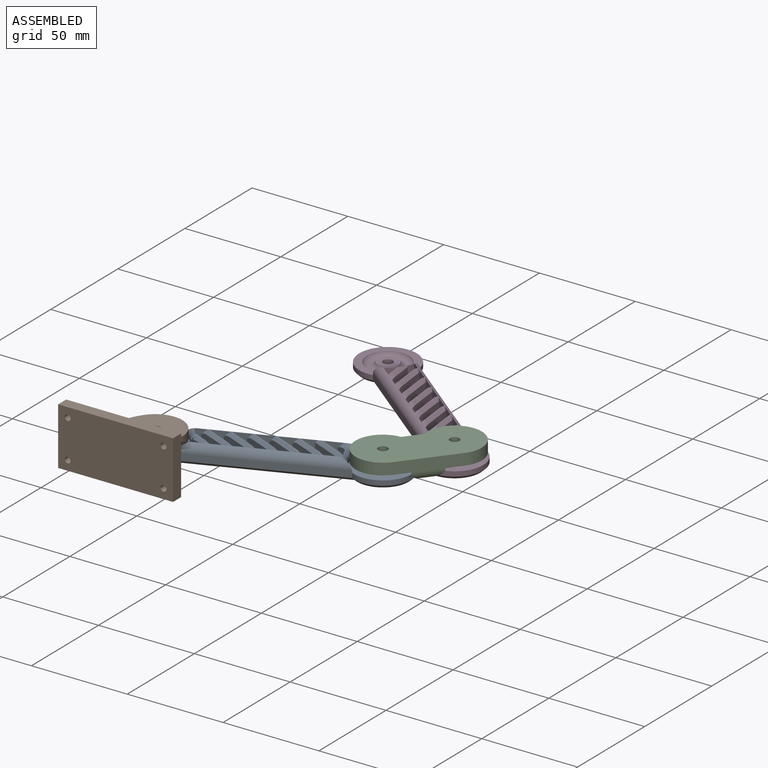
[diagram: assembled view]
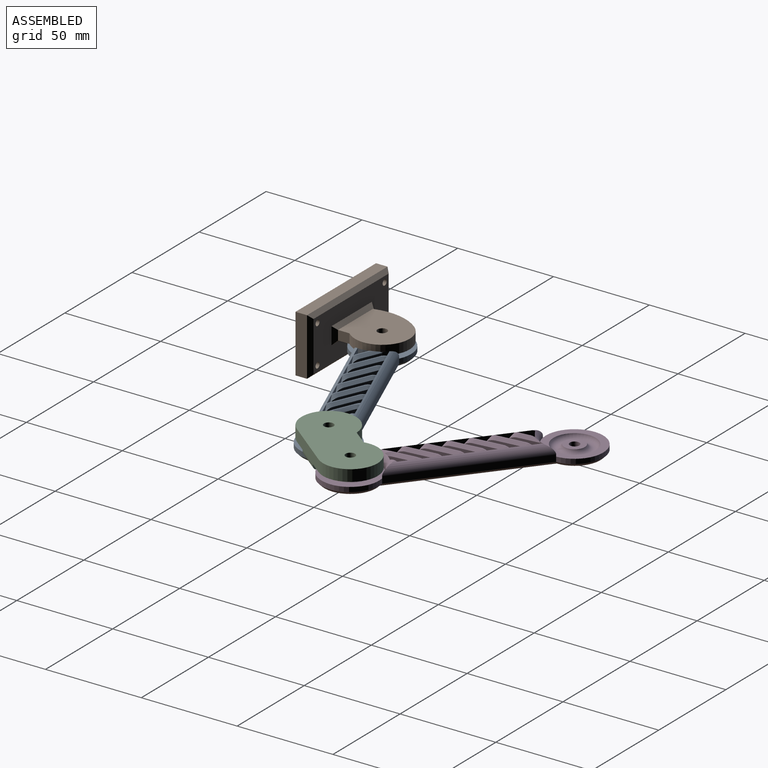
[diagram: assembled view, second angle]
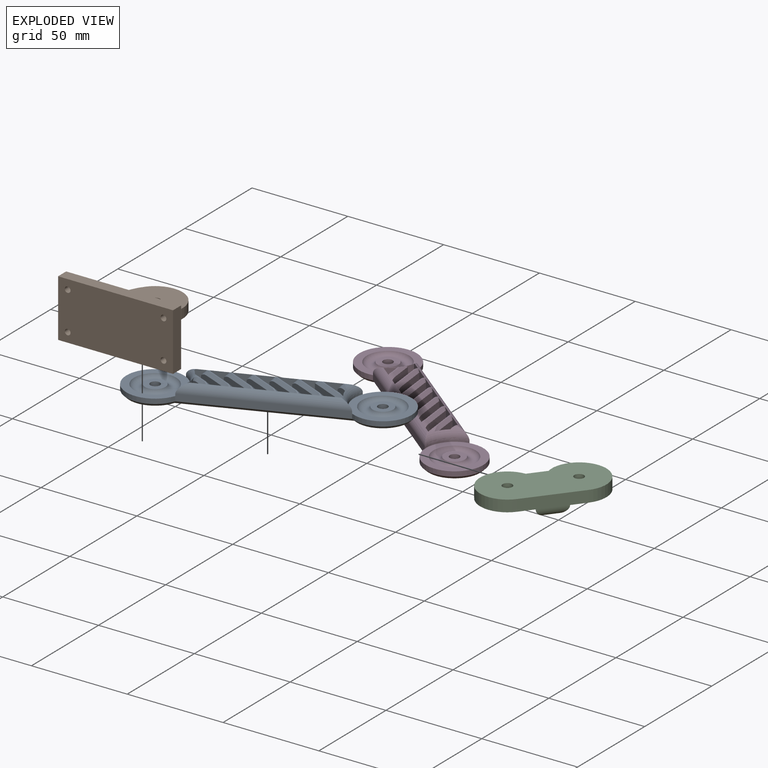
[diagram: exploded view]
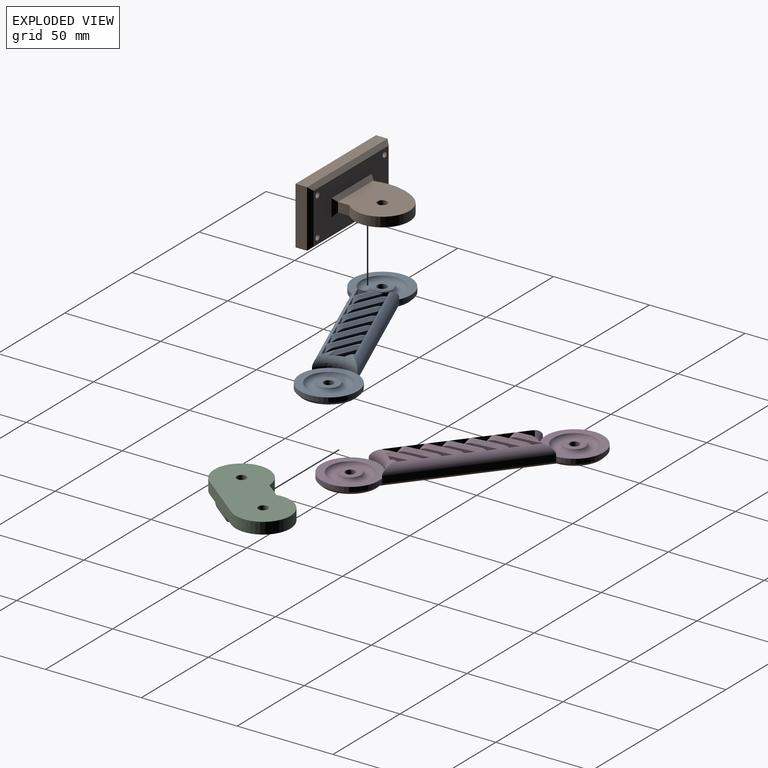
[diagram: exploded view, second angle]
ASSEMBLY  parts=4 mates=3
PART A: 117 faces, bbox 130.7x34.7x10.7 mm
  f0: plane 7.55x7.55mm, normal (0,0,1), area 5.4mm2, adj f56,f57,f63,f116
  f1: plane 10.76x10mm, normal (0,0,1), area 7.6mm2, adj f54,f57,f66,f69
  f2: plane 10.76x10mm, normal (0,0,1), area 7.6mm2, adj f54,f57,f72,f75
  f3: plane 10.76x10mm, normal (0,0,1), area 7.6mm2, adj f54,f57,f78,f81
  f4: plane 10.76x10mm, normal (0,0,1), area 7.6mm2, adj f54,f57,f92,f95
  f5: plane 10.76x10mm, normal (0,0,1), area 7.6mm2, adj f54,f57,f86,f89
  f6: plane 30x30mm, normal (0,0,1), area 326.1mm2, adj f15,f50,f53
  f7: plane 10.7x10.7mm, normal (0,0,1), area 70.3mm2, adj f51,f53
  f8: plane 30x30mm, normal (0,0,1), area 326.1mm2, adj f13,f48,f52
  f9: plane 10.7x10.7mm, normal (0,0,1), area 70.3mm2, adj f49,f52
  f10: plane 9.77x9.43mm, normal (0,-1,0), area 52.9mm2, adj f11,f45,f47,f57,f70,f103,f104,f116
  f11: plane 14x14mm, normal (-0.71,-0.71,0), area 138.6mm2, adj f10,f12,f103,f116
  f12: plane 10.52x10.26mm, normal (0,1,0), area 55.6mm2, adj f11,f45,f47,f54,f56,f68,f103,f104
  f13: cylinder r=15mm len=20mm, axis (0,0,-1), area 21.9mm2, adj f8,f14,f37,f55
  f14: plane 77.64x3.5mm, normal (0,-1,0), area 271.7mm2, adj f13,f15,f48,f50,f54,f99
  f15: cylinder r=15mm len=20mm, axis (0,0,-1), area 21.9mm2, adj f6,f14,f37,f56
  f16: plane 7.01x5.57mm, normal (-0.71,-0.71,0), area 54.4mm2, adj f17,f38,f59,f60,f61,f115
  f17: plane 9.77x9.31mm, normal (0,1,0), area 69.3mm2, adj f16,f38,f47,f54,f55,f61,f115
  f18: plane 14.04x14.04mm, normal (-0.71,-0.71,0), area 136.3mm2, adj f19,f39,f85,f86,f87,f113
  f19: plane 10.52x10.26mm, normal (0,1,0), area 55.7mm2, adj f18,f20,f47,f54,f84,f85,f113,f114
  f20: plane 11x11mm, normal (0.71,0.71,0), area 106.2mm2, adj f19,f21,f83,f84,f114
  f21: cylinder r=17mm len=9mm, axis (0,0,-1), area 31.1mm2, adj f20,f39,f47,f55,f83,f114
  f22: plane 14.04x14.04mm, normal (-0.71,-0.71,0), area 136.3mm2, adj f23,f40,f94,f95,f96,f111
  f23: plane 10.52x10.26mm, normal (0,1,0), area 55.7mm2, adj f22,f24,f47,f54,f88,f94,f111,f112
  f24: plane 14.04x14.04mm, normal (0.71,0.71,0), area 136.3mm2, adj f23,f40,f88,f89,f90,f112
  f25: plane 14.04x14.04mm, normal (-0.71,-0.71,0), area 136.3mm2, adj f26,f41,f80,f81,f82,f109
  f26: plane 10.52x10.26mm, normal (0,1,0), area 55.7mm2, adj f25,f27,f47,f54,f80,f91,f109,f110
  f27: plane 14.04x14.04mm, normal (0.71,0.71,0), area 136.3mm2, adj f26,f41,f91,f92,f93,f110
  f28: plane 14.04x14.04mm, normal (-0.71,-0.71,0), area 136.3mm2, adj f29,f42,f71,f72,f73,f107
  f29: plane 10.52x10.26mm, normal (0,1,0), area 55.7mm2, adj f28,f30,f47,f54,f71,f77,f107,f108
  f30: plane 14.04x14.04mm, normal (0.71,0.71,0), area 136.3mm2, adj f29,f42,f77,f78,f79,f108
  f31: plane 14.04x14.04mm, normal (-0.71,-0.71,0), area 136.3mm2, adj f32,f43,f65,f66,f67,f105
  f32: plane 10.52x10.26mm, normal (0,1,0), area 55.7mm2, adj f31,f33,f47,f54,f65,f74,f105,f106
  f33: plane 14.04x14.04mm, normal (0.71,0.71,0), area 136.3mm2, adj f32,f43,f74,f75,f76,f106
  f34: plane 9.77x9.77mm, normal (0.71,0.71,0), area 95.8mm2, adj f35,f44,f62,f63,f64,f102
  f35: plane 10.52x10.26mm, normal (0,-1,0), area 55.7mm2, adj f34,f36,f47,f57,f58,f64,f101,f102
  f36: plane 7.04x4.68mm, normal (-0.71,-0.71,0), area 43.7mm2, adj f35,f44,f58,f101
  f37: plane 77.64x3.5mm, normal (0,1,0), area 271.7mm2, adj f13,f15,f48,f50,f57,f98
  f38: cylinder r=17mm len=9mm, axis (0,0,-1), area 54.1mm2, adj f16,f17,f47,f55,f59,f115
  f39: plane 10.26x6.4mm, normal (0,-1,0), area 33.7mm2, adj f18,f21,f47,f55,f57,f87,f113
  f40: plane 10.52x10.26mm, normal (0,-1,0), area 55.7mm2, adj f22,f24,f47,f57,f90,f96,f111,f112
  f41: plane 10.52x10.26mm, normal (0,-1,0), area 55.7mm2, adj f25,f27,f47,f57,f82,f93,f109,f110
  f42: plane 10.52x10.26mm, normal (0,-1,0), area 55.7mm2, adj f28,f30,f47,f57,f73,f79,f107,f108
  f43: plane 10.52x10.26mm, normal (0,-1,0), area 55.7mm2, adj f31,f33,f47,f57,f67,f76,f105,f106
  f44: cylinder r=17mm len=9.68mm, axis (0,0,-1), area 50.2mm2, adj f34,f36,f47,f56,f58,f62,f101,f102
  f45: plane 14.04x14.04mm, normal (0.71,0.71,0), area 136.3mm2, adj f10,f12,f68,f69,f70,f104
  f46: plane 3.5x3.43mm, normal (0,0,1), area 2.3mm2, adj f54,f55,f60,f83
  f47: plane 127x27mm, normal (0,0,-1), area 1516mm2, adj f10,f12,f17,f19,f21,f23,f26,f29
  f48: cylinder r=15mm len=30mm, axis (0,0,-1), area 180.9mm2, adj f8,f14,f37,f100
  f49: cylinder r=2.5mm len=5mm, axis (0,0,-1), area 62.8mm2, adj f9,f47
  f50: cylinder r=15mm len=30mm, axis (0,0,-1), area 180.9mm2, adj f6,f14,f37,f97
  f51: cylinder r=2.5mm len=5mm, axis (0,0,-1), area 62.8mm2, adj f7,f47
  f52: torus R=8.18mm, axis (0,0,1), area 379.6mm2, adj f8,f9
  f53: torus R=8.18mm, axis (0,0,1), area 379.6mm2, adj f6,f7
  f54: cylinder r=5mm len=77.64mm, axis (-1,0,0), area 435.8mm2, adj f1,f2,f3,f4,f5,f12,f14,f17
  f55: torus R=20mm, axis (0,0,1), area 99.5mm2, adj f13,f17,f21,f38,f39,f46,f54,f57
  f56: torus R=20mm, axis (0,0,1), area 106.6mm2, adj f0,f12,f15,f44,f54,f57,f58,f62
  f57: cylinder r=5mm len=77.64mm, axis (1,0,0), area 438.2mm2, adj f0,f1,f2,f3,f4,f5,f10,f35
  f58: bspline ~7.04x5.73mm, area 11.6mm2, adj f35,f36,f44,f56,f57
  f59: bspline ~3.05x3.04mm, area 6mm2, adj f16,f38,f55,f60
  f60: plane 3.8x3.8mm, normal (-0.5,-0.5,0.71), area 8.2mm2, adj f16,f46,f59,f61
  f61: bspline ~2.53x2.53mm, area 3.7mm2, adj f16,f17,f54,f60
  f62: bspline ~3.72x3.49mm, area 6.6mm2, adj f34,f44,f56,f63
  f63: plane 7.76x7.76mm, normal (0.5,0.5,0.71), area 20.1mm2, adj f0,f34,f62,f64
  f64: bspline ~2.53x2.53mm, area 3.7mm2, adj f34,f35,f57,f63
  f65: bspline ~2.53x2.53mm, area 3.7mm2, adj f31,f32,f54,f66
  f66: plane 11.06x11.06mm, normal (-0.5,-0.5,0.71), area 30mm2, adj f1,f31,f65,f67
  f67: bspline ~5.43x4.12mm, area 9.1mm2, adj f31,f43,f57,f66
  f68: bspline ~5.43x4.12mm, area 9.1mm2, adj f12,f45,f54,f69
  f69: plane 11.06x11.06mm, normal (0.5,0.5,0.71), area 30mm2, adj f1,f45,f68,f70
  f70: bspline ~2.53x2.53mm, area 3.7mm2, adj f10,f45,f57,f69
  f71: bspline ~2.53x2.53mm, area 3.7mm2, adj f28,f29,f54,f72
  f72: plane 11.06x11.06mm, normal (-0.5,-0.5,0.71), area 30mm2, adj f2,f28,f71,f73
  f73: bspline ~5.56x4.21mm, area 9.1mm2, adj f28,f42,f57,f72
  f74: bspline ~5.43x4.12mm, area 9.1mm2, adj f32,f33,f54,f75
  f75: plane 11.06x11.06mm, normal (0.5,0.5,0.71), area 30mm2, adj f2,f33,f74,f76
  f76: bspline ~2.53x2.53mm, area 3.7mm2, adj f33,f43,f57,f75
  f77: bspline ~5.43x4.12mm, area 9.1mm2, adj f29,f30,f54,f78
  f78: plane 11.06x11.06mm, normal (0.5,0.5,0.71), area 30mm2, adj f3,f30,f77,f79
  f79: bspline ~2.53x2.53mm, area 3.7mm2, adj f30,f42,f57,f78
  f80: bspline ~2.53x2.53mm, area 3.7mm2, adj f25,f26,f54,f81
  f81: plane 11.06x11.06mm, normal (-0.5,-0.5,0.71), area 30mm2, adj f3,f25,f80,f82
  f82: bspline ~5.43x4.12mm, area 9.1mm2, adj f25,f41,f57,f81
  f83: plane 8.97x7.91mm, normal (0.5,0.5,0.71), area 19.3mm2, adj f20,f21,f46,f55,f84
  f84: bspline ~5.43x4.12mm, area 9.1mm2, adj f19,f20,f54,f83
  f85: bspline ~2.53x2.53mm, area 3.7mm2, adj f18,f19,f54,f86
  f86: plane 11.06x11.06mm, normal (-0.5,-0.5,0.71), area 30mm2, adj f5,f18,f85,f87
  f87: bspline ~5.43x4.12mm, area 9.1mm2, adj f18,f39,f57,f86
  f88: bspline ~5.43x4.12mm, area 9.1mm2, adj f23,f24,f54,f89
  f89: plane 11.06x11.06mm, normal (0.5,0.5,0.71), area 30mm2, adj f5,f24,f88,f90
  f90: bspline ~2.53x2.53mm, area 3.7mm2, adj f24,f40,f57,f89
  f91: bspline ~5.43x4.12mm, area 9.1mm2, adj f26,f27,f54,f92
  f92: plane 11.06x11.06mm, normal (0.5,0.5,0.71), area 30mm2, adj f4,f27,f91,f93
  f93: bspline ~2.53x2.53mm, area 3.7mm2, adj f27,f41,f57,f92
  f94: bspline ~2.53x2.53mm, area 3.7mm2, adj f22,f23,f54,f95
  f95: plane 11.06x11.06mm, normal (-0.5,-0.5,0.71), area 30mm2, adj f4,f22,f94,f96
  f96: bspline ~5.43x4.12mm, area 9.1mm2, adj f22,f40,f57,f95
  f97: cone r=15mm half-angle=45deg, axis (0,0,1), area 147.3mm2, adj f47,f50,f98,f99
  f98: plane 79.05x1.53mm, normal (0,0.71,-0.71), area 166.2mm2, adj f37,f47,f97,f100
  f99: plane 79.05x1.53mm, normal (0,-0.71,-0.71), area 166.2mm2, adj f14,f47,f97,f100
  f100: cone r=15mm half-angle=45deg, axis (0,0,1), area 147.3mm2, adj f47,f48,f98,f99
  f101: plane 5.04x4.7mm, normal (-0.5,-0.5,-0.71), area 11.3mm2, adj f35,f36,f44,f47
  f102: plane 12.68x12.68mm, normal (0.5,0.5,-0.71), area 33.3mm2, adj f34,f35,f44,f47
  f103: plane 16.12x14mm, normal (-0.5,-0.5,-0.71), area 42mm2, adj f10,f11,f12,f47
  f104: plane 16.12x14mm, normal (0.5,0.5,-0.71), area 42mm2, adj f10,f12,f45,f47
  f105: plane 16.12x14mm, normal (-0.5,-0.5,-0.71), area 42mm2, adj f31,f32,f43,f47
  f106: plane 16.12x14mm, normal (0.5,0.5,-0.71), area 42mm2, adj f32,f33,f43,f47
  f107: plane 16.12x14mm, normal (-0.5,-0.5,-0.71), area 42mm2, adj f28,f29,f42,f47
  f108: plane 16.12x14mm, normal (0.5,0.5,-0.71), area 42mm2, adj f29,f30,f42,f47
  f109: plane 16.12x14mm, normal (-0.5,-0.5,-0.71), area 42mm2, adj f25,f26,f41,f47
  f110: plane 16.12x14mm, normal (0.5,0.5,-0.71), area 42mm2, adj f26,f27,f41,f47
  f111: plane 16.12x14mm, normal (-0.5,-0.5,-0.71), area 42mm2, adj f22,f23,f40,f47
  f112: plane 16.12x14mm, normal (0.5,0.5,-0.71), area 42mm2, adj f23,f24,f40,f47
  f113: plane 16.12x14mm, normal (-0.5,-0.5,-0.71), area 42mm2, adj f18,f19,f39,f47
  f114: plane 11.04x11.04mm, normal (0.5,0.5,-0.71), area 29mm2, adj f19,f20,f21,f47
  f115: plane 7.72x7.67mm, normal (-0.5,-0.5,-0.71), area 19.7mm2, adj f16,f17,f38,f47
  f116: plane 15.55x14.25mm, normal (-0.5,-0.5,0.71), area 39.3mm2, adj f0,f10,f11,f12,f56,f57
PART B: 26 faces, bbox 60x40.3x30 mm
  f0: plane 31.27x30.25mm, normal (0,0,-1), area 400.2mm2, adj f2,f3,f4,f7,f18,f20
  f1: plane 10.7x10.7mm, normal (0,0,-1), area 70.3mm2, adj f5,f7
  f2: plane 6.03x5mm, normal (1,0,0), area 30.1mm2, adj f0,f3,f6,f21
  f3: cylinder r=14.25mm len=25.45mm, axis (0,0,-1), area 231.6mm2, adj f0,f2,f4,f6
  f4: cylinder r=27.2mm len=24.26mm, axis (0,0,-1), area 128.3mm2, adj f0,f3,f6,f18
  f5: cylinder r=2.5mm len=5mm, axis (0,0,-1), area 78.5mm2, adj f1,f6
  f6: plane 31.27x30.25mm, normal (0,0,1), area 761.3mm2, adj f2,f3,f4,f5,f18,f19
  f7: torus R=8.18mm, axis (0,0,1), area 379.6mm2, adj f0,f1
  f8: plane 56x26mm, normal (0,1,0), area 1157mm2, adj f12,f13,f14,f15,f18,f19,f20,f21
  f9: plane 60x6mm, normal (0,0,1), area 360mm2, adj f10,f16,f17,f23
  f10: plane 30x6mm, normal (-1,0,0), area 180mm2, adj f9,f11,f17,f22
  f11: plane 60x6mm, normal (0,0,-1), area 360mm2, adj f10,f16,f17,f24
  f12: cylinder r=1.5mm len=8mm, axis (0,1,0), area 75.4mm2, adj f8,f17
  f13: cylinder r=1.5mm len=8mm, axis (0,1,0), area 75.4mm2, adj f8,f17
  f14: cylinder r=1.5mm len=8mm, axis (0,1,0), area 75.4mm2, adj f8,f17
  f15: cylinder r=1.5mm len=8mm, axis (0,1,0), area 75.4mm2, adj f8,f17
  f16: plane 30x6mm, normal (1,0,0), area 180mm2, adj f9,f11,f17,f25
  f17: plane 60x30mm, normal (0,-1,0), area 1771.7mm2, adj f9,f10,f11,f12,f13,f14,f15,f16
  f18: plane 9x2.55mm, normal (-0.8,0.6,0), area 21mm2, adj f0,f4,f6,f8,f19,f20
  f19: plane 30.08x2mm, normal (0,0.71,0.71), area 80.1mm2, adj f6,f8,f18,f21
  f20: plane 30.08x2mm, normal (0,0.71,-0.71), area 80.1mm2, adj f0,f8,f18,f21
  f21: plane 9x2mm, normal (0.71,0.71,0), area 19.8mm2, adj f2,f8,f19,f20
  f22: plane 30x2mm, normal (-0.71,0.71,0), area 79.2mm2, adj f8,f10,f23,f24
  f23: plane 60x2mm, normal (0,0.71,0.71), area 164mm2, adj f8,f9,f22,f25
  f24: plane 60x2mm, normal (0,0.71,-0.71), area 164mm2, adj f8,f11,f22,f25
  f25: plane 30x2mm, normal (0.71,0.71,0), area 79.2mm2, adj f8,f16,f23,f24
PART C: 16 faces, bbox 28.5x60.5x11 mm
  f0: plane 60.5x28.5mm, normal (0,0,-1), area 646.5mm2, adj f2,f3,f4,f7,f9,f11,f13,f14
  f1: plane 10.7x10.7mm, normal (0,0,-1), area 70.3mm2, adj f5,f9
  f2: plane 32x6mm, normal (1,0,0), area 192mm2, adj f0,f4,f6,f11,f15
  f3: plane 10.2x6mm, normal (-1,0,0), area 61.2mm2, adj f0,f4,f6,f11
  f4: cylinder r=14.25mm len=28.5mm, axis (0,0,-1), area 343.1mm2, adj f0,f2,f3,f6
  f5: cylinder r=2.5mm len=6mm, axis (0,0,-1), area 94.2mm2, adj f1,f6
  f6: plane 60.5x28.5mm, normal (0,0,1), area 1425.2mm2, adj f2,f3,f4,f5,f11,f12
  f7: cylinder r=16.5mm len=10.23mm, axis (0,0,1), area 56.7mm2, adj f0,f8,f13,f15
  f8: plane 5.23x4.68mm, normal (0,0,-1), area 10.3mm2, adj f7,f13,f15
  f9: torus R=8.18mm, axis (0,0,1), area 379.6mm2, adj f0,f1
  f10: plane 10.7x10.7mm, normal (0,0,-1), area 70.3mm2, adj f12,f14
  f11: cylinder r=14.25mm len=28.5mm, axis (0,0,-1), area 343.1mm2, adj f0,f2,f3,f6
  f12: cylinder r=2.5mm len=6mm, axis (0,0,-1), area 94.2mm2, adj f6,f10
  f13: cylinder r=16.5mm len=10.23mm, axis (0,0,1), area 56.6mm2, adj f0,f7,f8,f15
  f14: torus R=8.18mm, axis (0,0,1), area 379.6mm2, adj f0,f10
  f15: cylinder r=5mm len=15.38mm, axis (0,1,0), area 84.9mm2, adj f2,f7,f8,f13
PART D: 117 faces, bbox 130.7x34.7x10.7 mm
  f0: plane 7.55x7.55mm, normal (0,0,1), area 5.4mm2, adj f56,f57,f63,f116
  f1: plane 10.76x10mm, normal (0,0,1), area 7.6mm2, adj f54,f57,f66,f69
  f2: plane 10.76x10mm, normal (0,0,1), area 7.6mm2, adj f54,f57,f72,f75
  f3: plane 10.76x10mm, normal (0,0,1), area 7.6mm2, adj f54,f57,f78,f81
  f4: plane 10.76x10mm, normal (0,0,1), area 7.6mm2, adj f54,f57,f92,f95
  f5: plane 10.76x10mm, normal (0,0,1), area 7.6mm2, adj f54,f57,f86,f89
  f6: plane 30x30mm, normal (0,0,1), area 326.1mm2, adj f15,f50,f53
  f7: plane 10.7x10.7mm, normal (0,0,1), area 70.3mm2, adj f51,f53
  f8: plane 30x30mm, normal (0,0,1), area 326.1mm2, adj f13,f48,f52
  f9: plane 10.7x10.7mm, normal (0,0,1), area 70.3mm2, adj f49,f52
  f10: plane 9.77x9.43mm, normal (0,-1,0), area 52.9mm2, adj f11,f45,f47,f57,f70,f103,f104,f116
  f11: plane 14x14mm, normal (-0.71,-0.71,0), area 138.6mm2, adj f10,f12,f103,f116
  f12: plane 10.52x10.26mm, normal (0,1,0), area 55.6mm2, adj f11,f45,f47,f54,f56,f68,f103,f104
  f13: cylinder r=15mm len=20mm, axis (0,0,-1), area 21.9mm2, adj f8,f14,f37,f55
  f14: plane 77.64x3.5mm, normal (0,-1,0), area 271.7mm2, adj f13,f15,f48,f50,f54,f99
  f15: cylinder r=15mm len=20mm, axis (0,0,-1), area 21.9mm2, adj f6,f14,f37,f56
  f16: plane 7.01x5.57mm, normal (-0.71,-0.71,0), area 54.4mm2, adj f17,f38,f59,f60,f61,f115
  f17: plane 9.77x9.31mm, normal (0,1,0), area 69.3mm2, adj f16,f38,f47,f54,f55,f61,f115
  f18: plane 14.04x14.04mm, normal (-0.71,-0.71,0), area 136.3mm2, adj f19,f39,f85,f86,f87,f113
  f19: plane 10.52x10.26mm, normal (0,1,0), area 55.7mm2, adj f18,f20,f47,f54,f84,f85,f113,f114
  f20: plane 11x11mm, normal (0.71,0.71,0), area 106.2mm2, adj f19,f21,f83,f84,f114
  f21: cylinder r=17mm len=9mm, axis (0,0,-1), area 31.1mm2, adj f20,f39,f47,f55,f83,f114
  f22: plane 14.04x14.04mm, normal (-0.71,-0.71,0), area 136.3mm2, adj f23,f40,f94,f95,f96,f111
  f23: plane 10.52x10.26mm, normal (0,1,0), area 55.7mm2, adj f22,f24,f47,f54,f88,f94,f111,f112
  f24: plane 14.04x14.04mm, normal (0.71,0.71,0), area 136.3mm2, adj f23,f40,f88,f89,f90,f112
  f25: plane 14.04x14.04mm, normal (-0.71,-0.71,0), area 136.3mm2, adj f26,f41,f80,f81,f82,f109
  f26: plane 10.52x10.26mm, normal (0,1,0), area 55.7mm2, adj f25,f27,f47,f54,f80,f91,f109,f110
  f27: plane 14.04x14.04mm, normal (0.71,0.71,0), area 136.3mm2, adj f26,f41,f91,f92,f93,f110
  f28: plane 14.04x14.04mm, normal (-0.71,-0.71,0), area 136.3mm2, adj f29,f42,f71,f72,f73,f107
  f29: plane 10.52x10.26mm, normal (0,1,0), area 55.7mm2, adj f28,f30,f47,f54,f71,f77,f107,f108
  f30: plane 14.04x14.04mm, normal (0.71,0.71,0), area 136.3mm2, adj f29,f42,f77,f78,f79,f108
  f31: plane 14.04x14.04mm, normal (-0.71,-0.71,0), area 136.3mm2, adj f32,f43,f65,f66,f67,f105
  f32: plane 10.52x10.26mm, normal (0,1,0), area 55.7mm2, adj f31,f33,f47,f54,f65,f74,f105,f106
  f33: plane 14.04x14.04mm, normal (0.71,0.71,0), area 136.3mm2, adj f32,f43,f74,f75,f76,f106
  f34: plane 9.77x9.77mm, normal (0.71,0.71,0), area 95.8mm2, adj f35,f44,f62,f63,f64,f102
  f35: plane 10.52x10.26mm, normal (0,-1,0), area 55.7mm2, adj f34,f36,f47,f57,f58,f64,f101,f102
  f36: plane 7.04x4.68mm, normal (-0.71,-0.71,0), area 43.7mm2, adj f35,f44,f58,f101
  f37: plane 77.64x3.5mm, normal (0,1,0), area 271.7mm2, adj f13,f15,f48,f50,f57,f98
  f38: cylinder r=17mm len=9mm, axis (0,0,-1), area 54.1mm2, adj f16,f17,f47,f55,f59,f115
  f39: plane 10.26x6.4mm, normal (0,-1,0), area 33.7mm2, adj f18,f21,f47,f55,f57,f87,f113
  f40: plane 10.52x10.26mm, normal (0,-1,0), area 55.7mm2, adj f22,f24,f47,f57,f90,f96,f111,f112
  f41: plane 10.52x10.26mm, normal (0,-1,0), area 55.7mm2, adj f25,f27,f47,f57,f82,f93,f109,f110
  f42: plane 10.52x10.26mm, normal (0,-1,0), area 55.7mm2, adj f28,f30,f47,f57,f73,f79,f107,f108
  f43: plane 10.52x10.26mm, normal (0,-1,0), area 55.7mm2, adj f31,f33,f47,f57,f67,f76,f105,f106
  f44: cylinder r=17mm len=9.68mm, axis (0,0,-1), area 50.2mm2, adj f34,f36,f47,f56,f58,f62,f101,f102
  f45: plane 14.04x14.04mm, normal (0.71,0.71,0), area 136.3mm2, adj f10,f12,f68,f69,f70,f104
  f46: plane 3.5x3.43mm, normal (0,0,1), area 2.3mm2, adj f54,f55,f60,f83
  f47: plane 127x27mm, normal (0,0,-1), area 1516mm2, adj f10,f12,f17,f19,f21,f23,f26,f29
  f48: cylinder r=15mm len=30mm, axis (0,0,-1), area 180.9mm2, adj f8,f14,f37,f100
  f49: cylinder r=2.5mm len=5mm, axis (0,0,-1), area 62.8mm2, adj f9,f47
  f50: cylinder r=15mm len=30mm, axis (0,0,-1), area 180.9mm2, adj f6,f14,f37,f97
  f51: cylinder r=2.5mm len=5mm, axis (0,0,-1), area 62.8mm2, adj f7,f47
  f52: torus R=8.18mm, axis (0,0,1), area 379.6mm2, adj f8,f9
  f53: torus R=8.18mm, axis (0,0,1), area 379.6mm2, adj f6,f7
  f54: cylinder r=5mm len=77.64mm, axis (-1,0,0), area 435.8mm2, adj f1,f2,f3,f4,f5,f12,f14,f17
  f55: torus R=20mm, axis (0,0,1), area 99.5mm2, adj f13,f17,f21,f38,f39,f46,f54,f57
  f56: torus R=20mm, axis (0,0,1), area 106.6mm2, adj f0,f12,f15,f44,f54,f57,f58,f62
  f57: cylinder r=5mm len=77.64mm, axis (1,0,0), area 438.2mm2, adj f0,f1,f2,f3,f4,f5,f10,f35
  f58: bspline ~7.04x5.73mm, area 11.6mm2, adj f35,f36,f44,f56,f57
  f59: bspline ~3.05x3.04mm, area 6mm2, adj f16,f38,f55,f60
  f60: plane 3.8x3.8mm, normal (-0.5,-0.5,0.71), area 8.2mm2, adj f16,f46,f59,f61
  f61: bspline ~2.53x2.53mm, area 3.7mm2, adj f16,f17,f54,f60
  f62: bspline ~3.72x3.49mm, area 6.6mm2, adj f34,f44,f56,f63
  f63: plane 7.76x7.76mm, normal (0.5,0.5,0.71), area 20.1mm2, adj f0,f34,f62,f64
  f64: bspline ~2.53x2.53mm, area 3.7mm2, adj f34,f35,f57,f63
  f65: bspline ~2.53x2.53mm, area 3.7mm2, adj f31,f32,f54,f66
  f66: plane 11.06x11.06mm, normal (-0.5,-0.5,0.71), area 30mm2, adj f1,f31,f65,f67
  f67: bspline ~5.43x4.12mm, area 9.1mm2, adj f31,f43,f57,f66
  f68: bspline ~5.43x4.12mm, area 9.1mm2, adj f12,f45,f54,f69
  f69: plane 11.06x11.06mm, normal (0.5,0.5,0.71), area 30mm2, adj f1,f45,f68,f70
  f70: bspline ~2.53x2.53mm, area 3.7mm2, adj f10,f45,f57,f69
  f71: bspline ~2.53x2.53mm, area 3.7mm2, adj f28,f29,f54,f72
  f72: plane 11.06x11.06mm, normal (-0.5,-0.5,0.71), area 30mm2, adj f2,f28,f71,f73
  f73: bspline ~5.43x4.12mm, area 9.1mm2, adj f28,f42,f57,f72
  f74: bspline ~5.43x4.12mm, area 9.1mm2, adj f32,f33,f54,f75
  f75: plane 11.06x11.06mm, normal (0.5,0.5,0.71), area 30mm2, adj f2,f33,f74,f76
  f76: bspline ~2.53x2.53mm, area 3.7mm2, adj f33,f43,f57,f75
  f77: bspline ~5.43x4.12mm, area 9.1mm2, adj f29,f30,f54,f78
  f78: plane 11.06x11.06mm, normal (0.5,0.5,0.71), area 30mm2, adj f3,f30,f77,f79
  f79: bspline ~2.53x2.53mm, area 3.7mm2, adj f30,f42,f57,f78
  f80: bspline ~2.53x2.53mm, area 3.7mm2, adj f25,f26,f54,f81
  f81: plane 11.06x11.06mm, normal (-0.5,-0.5,0.71), area 30mm2, adj f3,f25,f80,f82
  f82: bspline ~5.43x4.12mm, area 9.1mm2, adj f25,f41,f57,f81
  f83: plane 8.97x7.91mm, normal (0.5,0.5,0.71), area 19.3mm2, adj f20,f21,f46,f55,f84
  f84: bspline ~5.56x4.21mm, area 9.1mm2, adj f19,f20,f54,f83
  f85: bspline ~2.53x2.53mm, area 3.7mm2, adj f18,f19,f54,f86
  f86: plane 11.06x11.06mm, normal (-0.5,-0.5,0.71), area 30mm2, adj f5,f18,f85,f87
  f87: bspline ~5.43x4.12mm, area 9.1mm2, adj f18,f39,f57,f86
  f88: bspline ~5.43x4.12mm, area 9.1mm2, adj f23,f24,f54,f89
  f89: plane 11.06x11.06mm, normal (0.5,0.5,0.71), area 30mm2, adj f5,f24,f88,f90
  f90: bspline ~2.53x2.53mm, area 3.7mm2, adj f24,f40,f57,f89
  f91: bspline ~5.43x4.12mm, area 9.1mm2, adj f26,f27,f54,f92
  f92: plane 11.06x11.06mm, normal (0.5,0.5,0.71), area 30mm2, adj f4,f27,f91,f93
  f93: bspline ~2.53x2.53mm, area 3.7mm2, adj f27,f41,f57,f92
  f94: bspline ~2.53x2.53mm, area 3.7mm2, adj f22,f23,f54,f95
  f95: plane 11.06x11.06mm, normal (-0.5,-0.5,0.71), area 30mm2, adj f4,f22,f94,f96
  f96: bspline ~5.43x4.12mm, area 9.1mm2, adj f22,f40,f57,f95
  f97: cone r=15mm half-angle=45deg, axis (0,0,1), area 147.3mm2, adj f47,f50,f98,f99
  f98: plane 79.05x1.53mm, normal (0,0.71,-0.71), area 166.2mm2, adj f37,f47,f97,f100
  f99: plane 79.05x1.53mm, normal (0,-0.71,-0.71), area 166.2mm2, adj f14,f47,f97,f100
  f100: cone r=15mm half-angle=45deg, axis (0,0,1), area 147.3mm2, adj f47,f48,f98,f99
  f101: plane 5.04x4.7mm, normal (-0.5,-0.5,-0.71), area 11.3mm2, adj f35,f36,f44,f47
  f102: plane 12.68x12.68mm, normal (0.5,0.5,-0.71), area 33.3mm2, adj f34,f35,f44,f47
  f103: plane 16.12x14mm, normal (-0.5,-0.5,-0.71), area 42mm2, adj f10,f11,f12,f47
  f104: plane 16.12x14mm, normal (0.5,0.5,-0.71), area 42mm2, adj f10,f12,f45,f47
  f105: plane 16.12x14mm, normal (-0.5,-0.5,-0.71), area 42mm2, adj f31,f32,f43,f47
  f106: plane 16.12x14mm, normal (0.5,0.5,-0.71), area 42mm2, adj f32,f33,f43,f47
  f107: plane 16.12x14mm, normal (-0.5,-0.5,-0.71), area 42mm2, adj f28,f29,f42,f47
  f108: plane 16.12x14mm, normal (0.5,0.5,-0.71), area 42mm2, adj f29,f30,f42,f47
  f109: plane 16.12x14mm, normal (-0.5,-0.5,-0.71), area 42mm2, adj f25,f26,f41,f47
  f110: plane 16.12x14mm, normal (0.5,0.5,-0.71), area 42mm2, adj f26,f27,f41,f47
  f111: plane 16.12x14mm, normal (-0.5,-0.5,-0.71), area 42mm2, adj f22,f23,f40,f47
  f112: plane 16.12x14mm, normal (0.5,0.5,-0.71), area 42mm2, adj f23,f24,f40,f47
  f113: plane 16.12x14mm, normal (-0.5,-0.5,-0.71), area 42mm2, adj f18,f19,f39,f47
  f114: plane 11.04x11.04mm, normal (0.5,0.5,-0.71), area 29mm2, adj f19,f20,f21,f47
  f115: plane 7.72x7.67mm, normal (-0.5,-0.5,-0.71), area 19.7mm2, adj f16,f17,f38,f47
  f116: plane 15.55x14.25mm, normal (-0.5,-0.5,0.71), area 39.3mm2, adj f0,f10,f11,f12,f56,f57
PLACE A rot(axis=(0,0,1),21.8deg) t=(-0.97,15.03,-5.11)mm
PLACE B t=(-0.97,15.03,-5.11)mm fixed
PLACE C rot(axis=(0,0,-1),38.3deg) t=(13.37,114.04,-5.11)mm
PLACE D rot(axis=(0,0,-1),38.5deg) t=(13.51,114.41,-5.11)mm
MATE revolute A.f53 <-> C.f5  axis (0,0,1) through (91.89,52.12,-1.11)mm
MATE revolute C.f11 <-> D.f15  axis (0,0,-1) through (111.71,77.25,0.89)mm
MATE revolute B.f5 <-> A.f49  axis (0,0,-1) through (-0.97,15.03,0.89)mm
